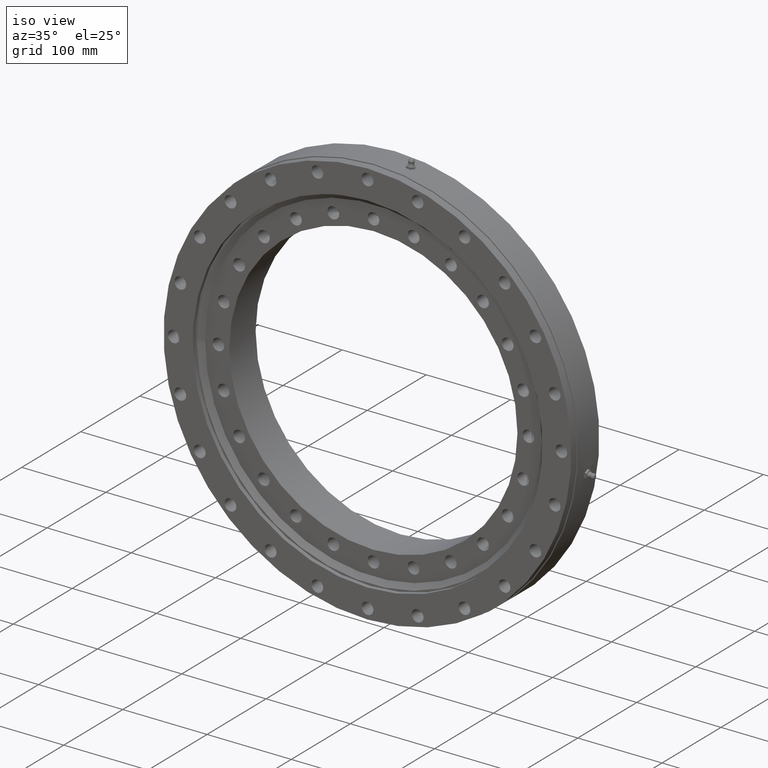
[diagram: clean part render]
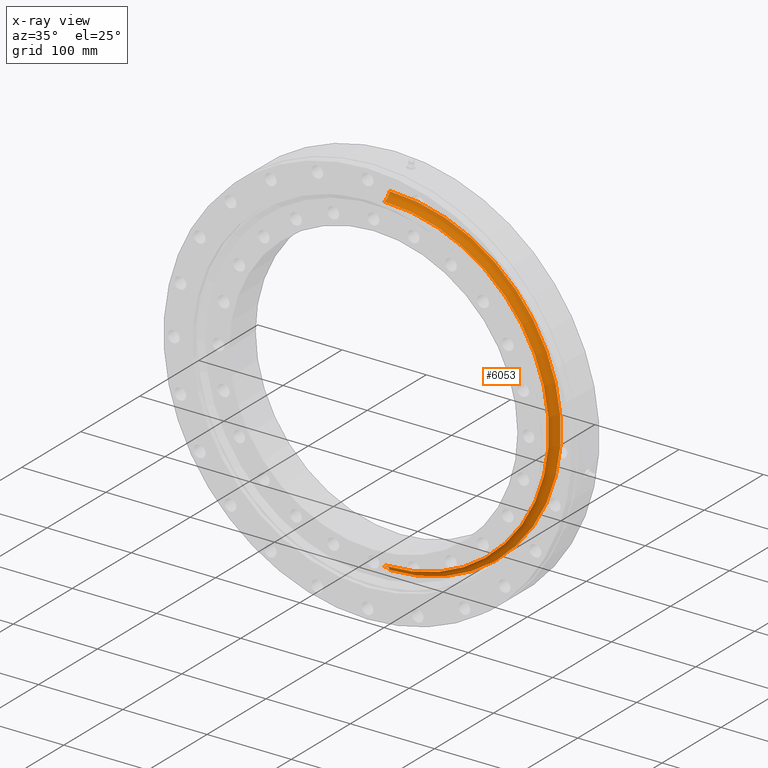
[diagram: x-ray — body ghosted, one internal face saturated and labeled with its STEP entity id]
A machine part, iso view, then the same camera in x-ray: the body is ghosted and one INTERNAL B-rep face — a face not visible from any outside direction — is saturated and labeled: STEP entity #6053.
In plain terms, the highlighted toroidal blend (fillet) surface has major radius 205.5 mm and minor (blend) radius 9.75 mm.
Its self-contained STEP definition (entity closure, byte-faithful):
#121 = CARTESIAN_POINT ( 'NONE',  ( 0.0000000000000000000, 9.486832980505134600, 203.2500000000000000 ) ) ;
#471 = DIRECTION ( 'NONE',  ( -0.0000000000000000000, 1.000000000000000000, -2.727064569436389700E-017 ) ) ;
#942 = DIRECTION ( 'NONE',  ( 0.0000000000000000000, 2.727064569436389700E-017, 1.000000000000000000 ) ) ;
#1691 = CARTESIAN_POINT ( 'NONE',  ( 0.0000000000000000000, -6.938893903907228400E-015, 0.0000000000000000000 ) ) ;
#2218 = DIRECTION ( 'NONE',  ( -0.0000000000000000000, 1.000000000000000000, -2.727064569436389700E-017 ) ) ;
#2268 = AXIS2_PLACEMENT_3D ( 'NONE', #1691, #471, #2853 ) ;
#2275 = CIRCLE ( 'NONE', #2951, 9.750000000000008900 ) ;
#2329 = VERTEX_POINT ( 'NONE', #5186 ) ;
#2609 = VERTEX_POINT ( 'NONE', #5166 ) ;
#2722 = AXIS2_PLACEMENT_3D ( 'NONE', #4607, #3359, #942 ) ;
#2853 = DIRECTION ( 'NONE',  ( 0.0000000000000000000, 2.727064569436389700E-017, 1.000000000000000000 ) ) ;
#2911 = DIRECTION ( 'NONE',  ( 1.224646799147352700E-016, 0.0000000000000000000, -1.000000000000000000 ) ) ;
#2951 = AXIS2_PLACEMENT_3D ( 'NONE', #3645, #5468, #2911 ) ;
#2978 = TOROIDAL_SURFACE ( 'NONE', #2268, 205.5000000000000000, 9.750000000000000000 ) ;
#3054 = AXIS2_PLACEMENT_3D ( 'NONE', #6620, #2218, #5966 ) ;
#3344 = EDGE_CURVE ( 'NONE', #2609, #6645, #2275, .T. ) ;
#3359 = DIRECTION ( 'NONE',  ( -0.0000000000000000000, 1.000000000000000000, -2.727064569436389700E-017 ) ) ;
#3477 = AXIS2_PLACEMENT_3D ( 'NONE', #8230, #4049, #8275 ) ;
#3645 = CARTESIAN_POINT ( 'NONE',  ( 2.516649172247810800E-014, -1.254301159409901000E-014, -205.5000000000000000 ) ) ;
#3699 = ORIENTED_EDGE ( 'NONE', *, *, #3344, .F. ) ;
#4049 = DIRECTION ( 'NONE',  ( -1.000000000000000000, 0.0000000000000000000, 0.0000000000000000000 ) ) ;
#4128 = EDGE_CURVE ( 'NONE', #5964, #2329, #6774, .T. ) ;
#4607 = CARTESIAN_POINT ( 'NONE',  ( 0.0000000000000000000, -8.132924533075897600E-015, 3.256198623627719100E-032 ) ) ;
#4735 = ORIENTED_EDGE ( 'NONE', *, *, #5917, .F. ) ;
#5166 = CARTESIAN_POINT ( 'NONE',  ( 2.489094619266995000E-014, 9.486832980505123900, -203.2500000000000000 ) ) ;
#5186 = CARTESIAN_POINT ( 'NONE',  ( 0.0000000000000000000, -8.132924533075891300E-015, 195.7499999999999700 ) ) ;
#5428 = ORIENTED_EDGE ( 'NONE', *, *, #6381, .T. ) ;
#5468 = DIRECTION ( 'NONE',  ( 1.000000000000000000, 3.339690896028429500E-033, 1.224646799147353200E-016 ) ) ;
#5619 = ORIENTED_EDGE ( 'NONE', *, *, #4128, .T. ) ;
#5710 = CIRCLE ( 'NONE', #3054, 203.2500000000000000 ) ;
#5917 = EDGE_CURVE ( 'NONE', #5964, #2609, #5710, .T. ) ;
#5964 = VERTEX_POINT ( 'NONE', #121 ) ;
#5966 = DIRECTION ( 'NONE',  ( 0.0000000000000000000, 2.560477455316320600E-017, 1.000000000000000000 ) ) ;
#6053 = ADVANCED_FACE ( 'NONE', ( #6771 ), #2978, .F. ) ;
#6381 = EDGE_CURVE ( 'NONE', #2329, #6645, #6632, .T. ) ;
#6387 = CARTESIAN_POINT ( 'NONE',  ( 2.397246109330943700E-014, -8.132924533075900800E-015, -195.7499999999999700 ) ) ;
#6620 = CARTESIAN_POINT ( 'NONE',  ( 0.0000000000000000000, 9.486832980505129200, -1.104895824552873100E-015 ) ) ;
#6632 = CIRCLE ( 'NONE', #2722, 195.7499999999999700 ) ;
#6645 = VERTEX_POINT ( 'NONE', #6387 ) ;
#6771 = FACE_OUTER_BOUND ( 'NONE', #8290, .T. ) ;
#6774 = CIRCLE ( 'NONE', #3477, 9.750000000000008900 ) ;
#8230 = CARTESIAN_POINT ( 'NONE',  ( 0.0000000000000000000, -1.334776213715448000E-015, 205.5000000000000000 ) ) ;
#8275 = DIRECTION ( 'NONE',  ( 0.0000000000000000000, 0.0000000000000000000, 1.000000000000000000 ) ) ;
#8290 = EDGE_LOOP ( 'NONE', ( #5619, #5428, #3699, #4735 ) ) ;